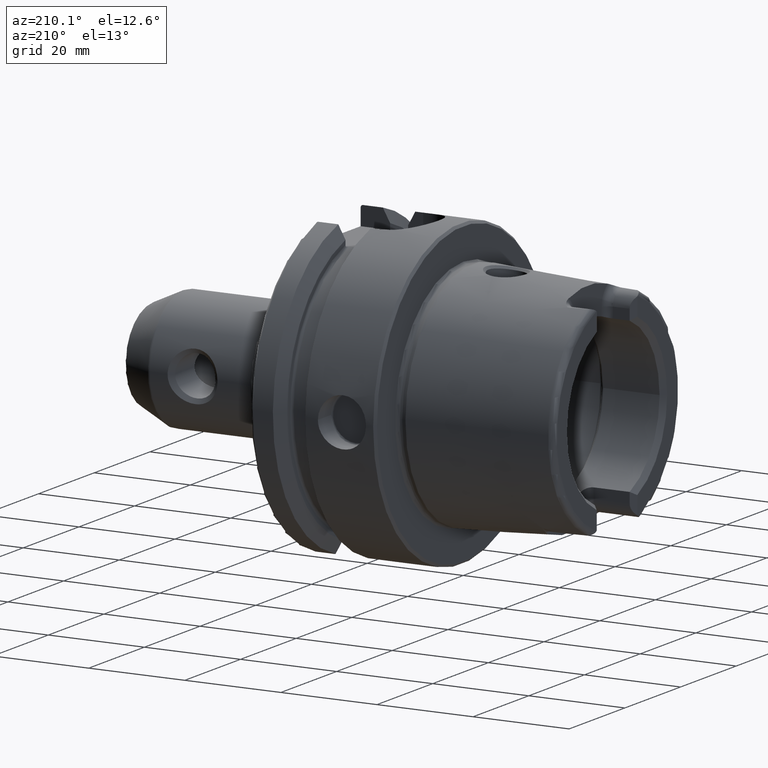
[diagram: clean part render]
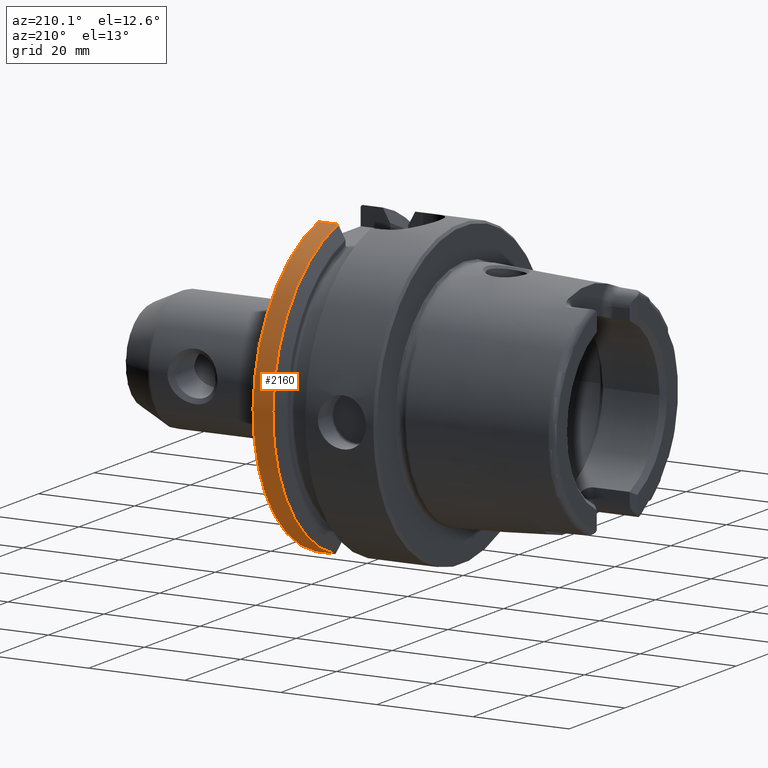
[diagram: same view with one face highlighted and labeled with its STEP entity id]
A machine part, auxiliary view. The second image highlights one B-rep face of the part: STEP entity #2160.
In plain terms, the highlighted cylindrical surface (partial cylindrical patch) has radius 31.5 mm, axis along (1, 0, 0).
Its self-contained STEP definition (entity closure, byte-faithful):
#215=CYLINDRICAL_SURFACE('',#2401,31.5);
#310=FACE_OUTER_BOUND('',#447,.T.);
#447=EDGE_LOOP('',(#1870,#1871,#1872,#1873));
#575=LINE('',#4483,#685);
#582=LINE('',#4622,#692);
#685=VECTOR('',#2863,10.);
#692=VECTOR('',#2914,10.);
#802=CIRCLE('',#2400,31.5);
#803=CIRCLE('',#2402,31.5);
#1018=VERTEX_POINT('',#4478);
#1019=VERTEX_POINT('',#4482);
#1034=VERTEX_POINT('',#4610);
#1035=VERTEX_POINT('',#4621);
#1294=EDGE_CURVE('',#1019,#1018,#575,.T.);
#1323=EDGE_CURVE('',#1035,#1034,#582,.T.);
#1333=EDGE_CURVE('',#1019,#1034,#802,.T.);
#1334=EDGE_CURVE('',#1018,#1035,#803,.T.);
#1870=ORIENTED_EDGE('',*,*,#1294,.T.);
#1871=ORIENTED_EDGE('',*,*,#1334,.T.);
#1872=ORIENTED_EDGE('',*,*,#1323,.T.);
#1873=ORIENTED_EDGE('',*,*,#1333,.F.);
#2160=ADVANCED_FACE('',(#310),#215,.T.);
#2400=AXIS2_PLACEMENT_3D('',#4653,#2937,#2938);
#2401=AXIS2_PLACEMENT_3D('',#4654,#2939,#2940);
#2402=AXIS2_PLACEMENT_3D('',#4655,#2941,#2942);
#2863=DIRECTION('',(-1.,0.,0.));
#2914=DIRECTION('',(1.,0.,0.));
#2937=DIRECTION('center_axis',(1.,0.,0.));
#2938=DIRECTION('ref_axis',(0.,0.,-1.));
#2939=DIRECTION('center_axis',(1.,0.,0.));
#2940=DIRECTION('ref_axis',(0.,1.,0.));
#2941=DIRECTION('center_axis',(1.,0.,0.));
#2942=DIRECTION('ref_axis',(0.,0.,-1.));
#4478=CARTESIAN_POINT('',(21.3774990747593,9.,-30.1869176962472));
#4482=CARTESIAN_POINT('',(25.5,9.,-30.1869176962472));
#4483=CARTESIAN_POINT('',(23.4387495373797,9.,-30.1869176962472));
#4610=CARTESIAN_POINT('',(25.5,8.,30.4671954731642));
#4621=CARTESIAN_POINT('',(21.3774990747593,8.,30.4671954731642));
#4622=CARTESIAN_POINT('',(23.4387495373797,8.,30.4671954731642));
#4653=CARTESIAN_POINT('Origin',(25.5,0.,0.));
#4654=CARTESIAN_POINT('Origin',(23.4387495373797,0.,0.));
#4655=CARTESIAN_POINT('Origin',(21.3774990747593,0.,0.));